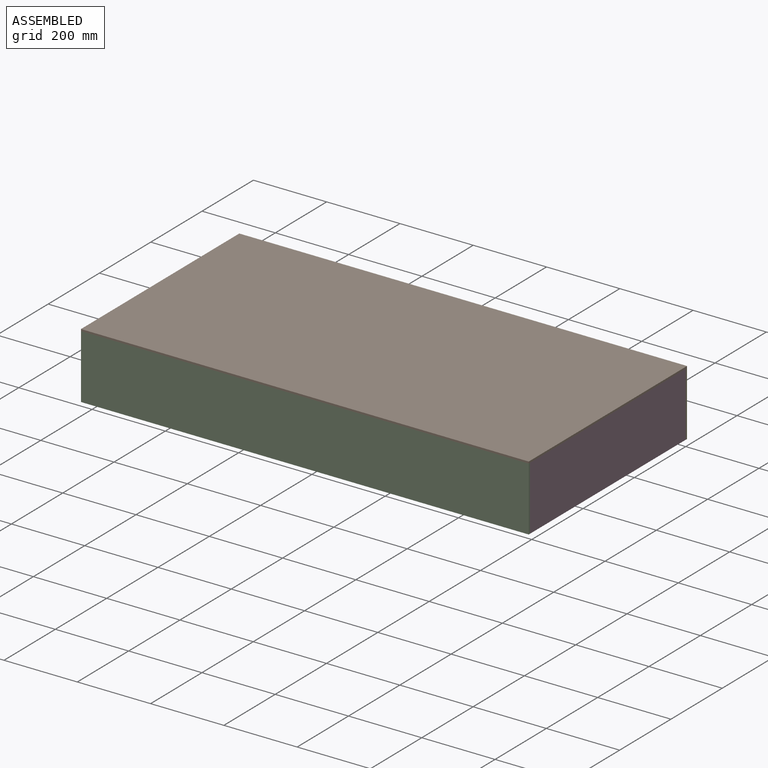
[diagram: assembled view]
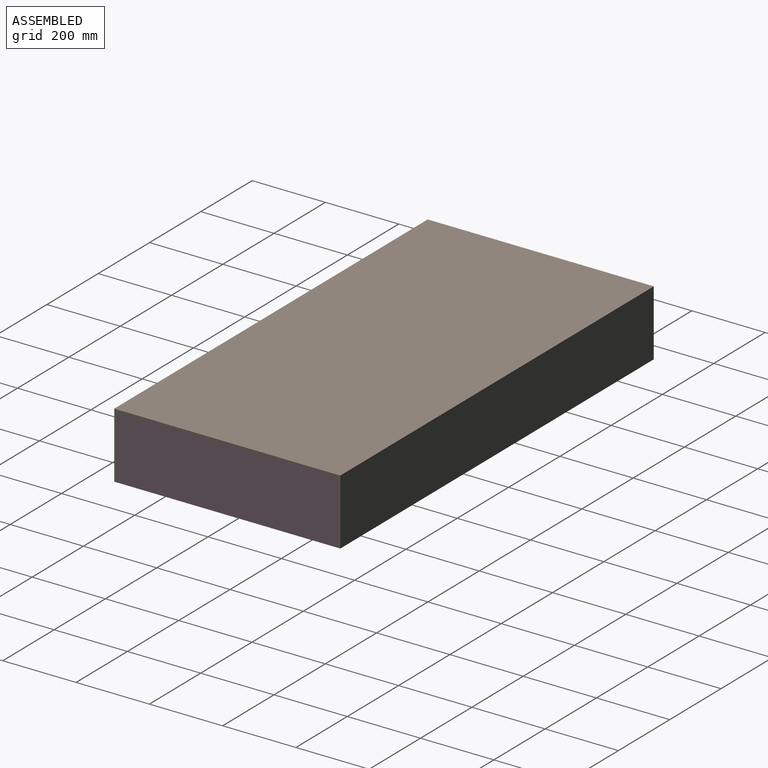
[diagram: assembled view, second angle]
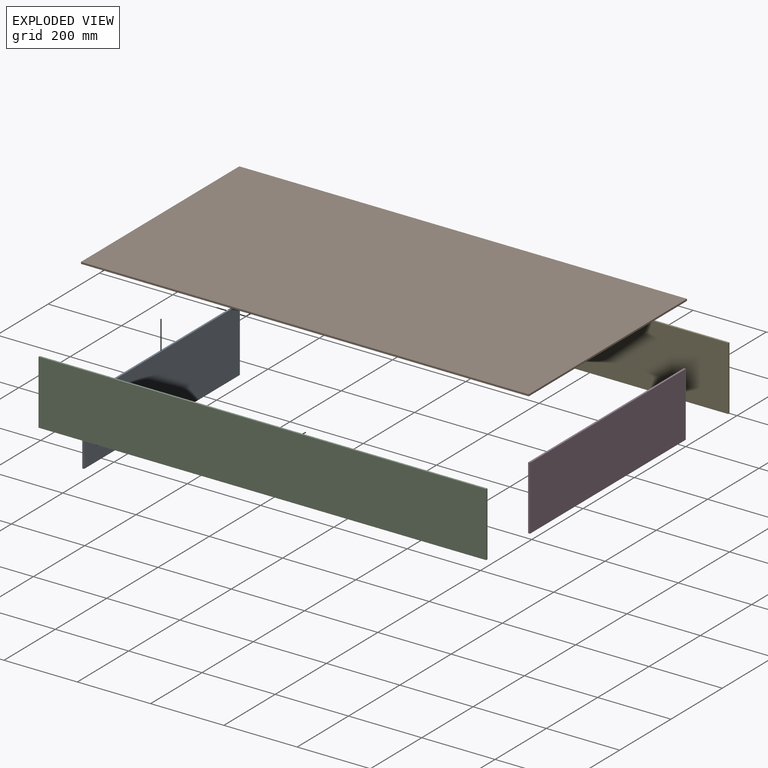
[diagram: exploded view]
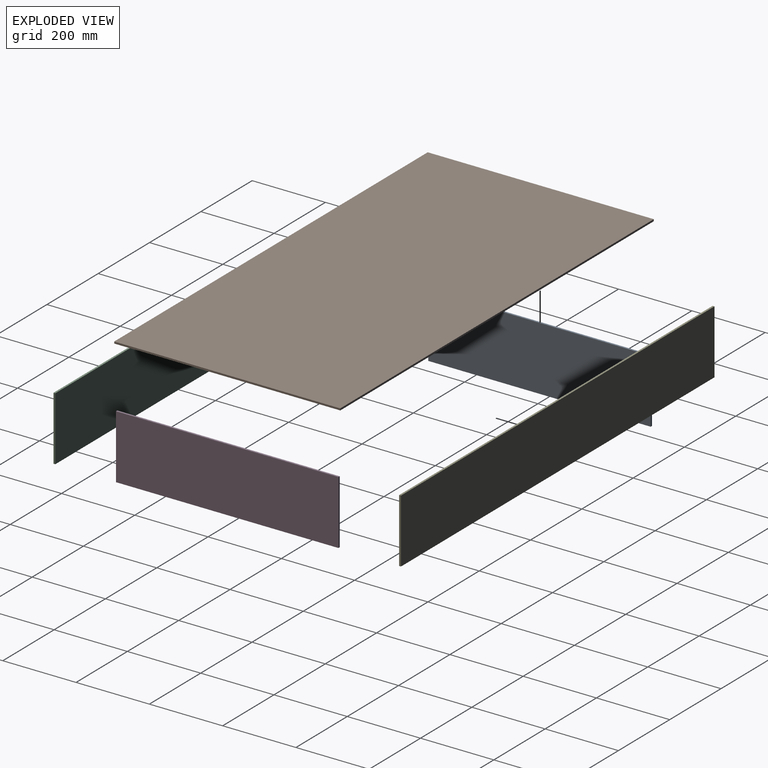
[diagram: exploded view, second angle]
ASSEMBLY  parts=5 mates=12
PART A: 6 faces, bbox 607x175x5 mm
  f0: plane 607x5mm, normal (0,1,0), area 3035mm2, adj f1,f3,f4,f5
  f1: plane 175x5mm, normal (-1,0,0), area 875mm2, adj f0,f2,f4,f5
  f2: plane 607x5mm, normal (0,-1,0), area 3035mm2, adj f1,f3,f4,f5
  f3: plane 175x5mm, normal (1,0,0), area 875mm2, adj f0,f2,f4,f5
  f4: plane 607x175mm, normal (0,0,1), area 106225mm2, adj f0,f1,f2,f3
  f5: plane 607x175mm, normal (0,0,-1), area 106225mm2, adj f0,f1,f2,f3
PART B: 6 faces, bbox 1222x617x5 mm
  f0: plane 1222x5mm, normal (0,1,0), area 6110mm2, adj f1,f3,f4,f5
  f1: plane 617x5mm, normal (-1,0,0), area 3085mm2, adj f0,f2,f4,f5
  f2: plane 1222x5mm, normal (0,-1,0), area 6110mm2, adj f1,f3,f4,f5
  f3: plane 617x5mm, normal (1,0,0), area 3085mm2, adj f0,f2,f4,f5
  f4: plane 1222x617mm, normal (0,0,1), area 753974mm2, adj f0,f1,f2,f3
  f5: plane 1222x617mm, normal (0,0,-1), area 753974mm2, adj f0,f1,f2,f3
PART C: 6 faces, bbox 1222x175x5 mm
  f0: plane 1222x5mm, normal (0,1,0), area 6110mm2, adj f1,f3,f4,f5
  f1: plane 175x5mm, normal (-1,0,0), area 875mm2, adj f0,f2,f4,f5
  f2: plane 1222x5mm, normal (0,-1,0), area 6110mm2, adj f1,f3,f4,f5
  f3: plane 175x5mm, normal (1,0,0), area 875mm2, adj f0,f2,f4,f5
  f4: plane 1222x175mm, normal (0,0,1), area 213850mm2, adj f0,f1,f2,f3
  f5: plane 1222x175mm, normal (0,0,-1), area 213850mm2, adj f0,f1,f2,f3
PART D: same geometry as A
PART E: same geometry as C
PLACE A rot(axis=(-0.58,0.58,-0.58),120deg) t=(-613.25,-1.35,-86.28)mm
PLACE B t=(-2.25,-1.35,1.22)mm fixed
PLACE C rot(axis=(-1,0,0),90deg) t=(-2.25,-309.85,-86.28)mm
PLACE D rot(axis=(0.58,-0.58,-0.58),120deg) t=(608.75,-1.35,-86.28)mm
PLACE E rot(axis=(1,0,0),90deg) t=(-2.25,307.15,-86.28)mm
MATE planar C.f5 <-> B.f2  axis (0,-1,0) through (-2.25,-309.85,-86.28)mm
MATE planar E.f5 <-> B.f0  axis (0,1,0) through (-2.25,307.15,-86.28)mm
MATE planar B.f1 <-> E.f1  axis (-1,0,0) through (-613.25,-1.35,3.72)mm
MATE planar C.f3 <-> B.f3  axis (1,0,0) through (608.75,-307.35,-86.28)mm
MATE planar D.f0 <-> B.f5  axis (0,0,1) through (606.25,-1.35,1.22)mm
MATE planar E.f0 <-> B.f5  axis (0,0,1) through (-2.25,304.65,1.22)mm
MATE planar A.f5 <-> C.f1  axis (-1,0,0) through (-613.25,-1.35,-86.28)mm
MATE planar B.f5 <-> C.f2  axis (0,0,-1) through (-2.25,-1.35,1.22)mm
MATE planar D.f5 <-> E.f3  axis (1,0,0) through (608.75,-1.35,-86.28)mm
MATE planar A.f2 <-> B.f5  axis (0,0,1) through (-610.75,-1.35,1.22)mm
MATE planar A.f3 <-> C.f4  axis (0,-1,0) through (-610.75,-304.85,-86.28)mm
MATE planar D.f1 <-> E.f4  axis (0,1,0) through (606.25,302.15,-86.28)mm
